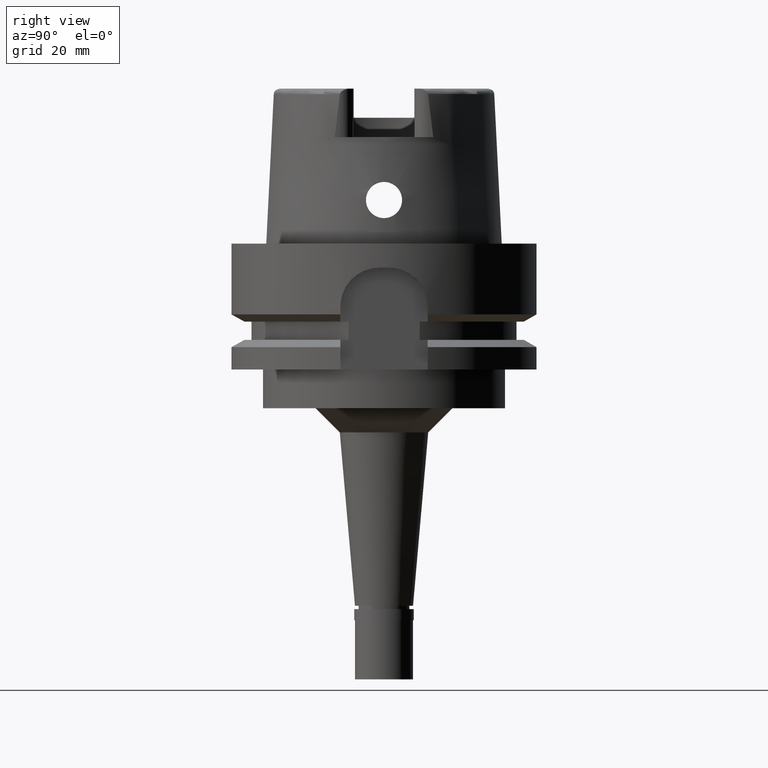
[diagram: clean part render]
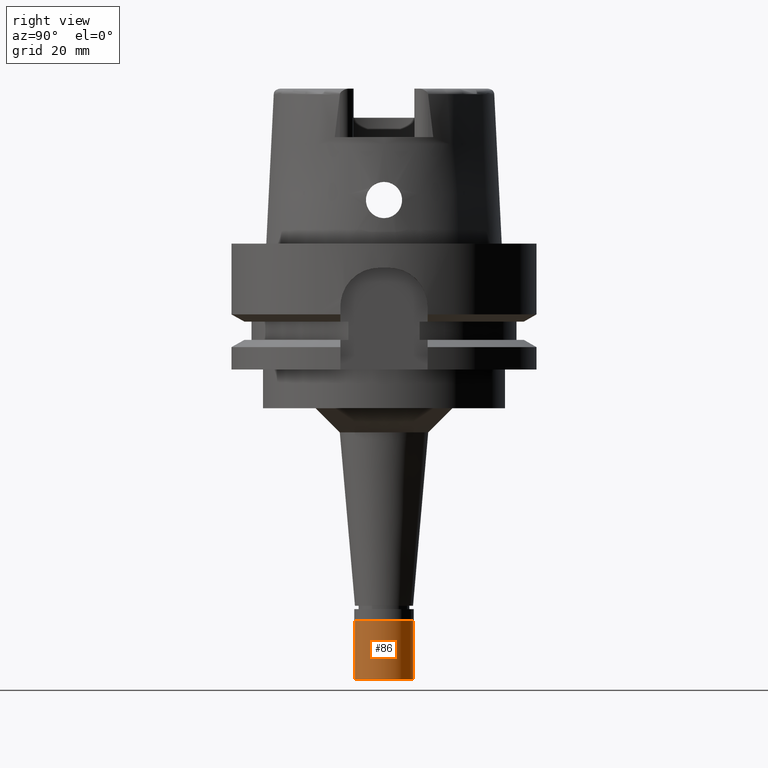
[diagram: same view with one face highlighted and labeled with its STEP entity id]
A machine part, right view. The second image highlights one B-rep face of the part: STEP entity #86.
In plain terms, the highlighted cylindrical surface (edge-blend (fillet) strip) has radius 6 mm, axis along (0, 0, 1).
Its self-contained STEP definition (entity closure, byte-faithful):
#13 = VERTEX_POINT ( 'NONE', #4155 ) ;
#20 = EDGE_CURVE ( 'NONE', #3428, #2763, #724, .T. ) ;
#86 = ADVANCED_FACE ( 'NONE', ( #1552 ), #1149, .T. ) ;
#455 = ORIENTED_EDGE ( 'NONE', *, *, #2513, .F. ) ;
#507 = VECTOR ( 'NONE', #3989, 1000.000000000000000 ) ;
#640 = DIRECTION ( 'NONE',  ( 0.0000000000000000000, 0.0000000000000000000, -1.000000000000000000 ) ) ;
#657 = CARTESIAN_POINT ( 'NONE',  ( 0.0000000000000000000, 0.0000000000000000000, -2.299999999999999822 ) ) ;
#690 = CIRCLE ( 'NONE', #3887, 6.000000000000000000 ) ;
#699 = DIRECTION ( 'NONE',  ( 0.0000000000000000000, 0.0000000000000000000, 1.000000000000000000 ) ) ;
#724 = LINE ( 'NONE', #3268, #1877 ) ;
#972 = DIRECTION ( 'NONE',  ( 0.0000000000000000000, 0.0000000000000000000, 1.000000000000000000 ) ) ;
#1017 = CARTESIAN_POINT ( 'NONE',  ( 0.0000000000000000000, 6.000000000000000000, -2.299999999999999822 ) ) ;
#1149 = CYLINDRICAL_SURFACE ( 'NONE', #4436, 6.000000000000000000 ) ;
#1552 = FACE_OUTER_BOUND ( 'NONE', #3675, .T. ) ;
#1646 = CARTESIAN_POINT ( 'NONE',  ( 0.0000000000000000000, -6.000000000000000000, -2.299999999999999822 ) ) ;
#1757 = ORIENTED_EDGE ( 'NONE', *, *, #4539, .T. ) ;
#1877 = VECTOR ( 'NONE', #640, 1000.000000000000000 ) ;
#1911 = VERTEX_POINT ( 'NONE', #4537 ) ;
#1944 = DIRECTION ( 'NONE',  ( 0.0000000000000000000, 0.0000000000000000000, -1.000000000000000000 ) ) ;
#1959 = CIRCLE ( 'NONE', #4515, 6.000000000000000000 ) ;
#2404 = DIRECTION ( 'NONE',  ( 0.0000000000000000000, 1.000000000000000000, 0.0000000000000000000 ) ) ;
#2513 = EDGE_CURVE ( 'NONE', #13, #1911, #4526, .T. ) ;
#2763 = VERTEX_POINT ( 'NONE', #4094 ) ;
#3162 = CARTESIAN_POINT ( 'NONE',  ( 0.0000000000000000000, 0.0000000000000000000, -14.50000000000000000 ) ) ;
#3164 = ORIENTED_EDGE ( 'NONE', *, *, #20, .T. ) ;
#3268 = CARTESIAN_POINT ( 'NONE',  ( 0.0000000000000000000, -6.000000000000000000, -2.299999999999999822 ) ) ;
#3428 = VERTEX_POINT ( 'NONE', #1646 ) ;
#3609 = ORIENTED_EDGE ( 'NONE', *, *, #4295, .T. ) ;
#3675 = EDGE_LOOP ( 'NONE', ( #3609, #3164, #1757, #455 ) ) ;
#3887 = AXIS2_PLACEMENT_3D ( 'NONE', #3162, #972, #4022 ) ;
#3989 = DIRECTION ( 'NONE',  ( 0.0000000000000000000, 0.0000000000000000000, -1.000000000000000000 ) ) ;
#4022 = DIRECTION ( 'NONE',  ( 0.0000000000000000000, -1.000000000000000000, 0.0000000000000000000 ) ) ;
#4094 = CARTESIAN_POINT ( 'NONE',  ( 0.0000000000000000000, -6.000000000000000000, -14.50000000000000000 ) ) ;
#4155 = CARTESIAN_POINT ( 'NONE',  ( 0.0000000000000000000, 6.000000000000000000, -2.299999999999999822 ) ) ;
#4295 = EDGE_CURVE ( 'NONE', #13, #3428, #1959, .T. ) ;
#4436 = AXIS2_PLACEMENT_3D ( 'NONE', #4611, #699, #5070 ) ;
#4515 = AXIS2_PLACEMENT_3D ( 'NONE', #657, #1944, #2404 ) ;
#4526 = LINE ( 'NONE', #1017, #507 ) ;
#4537 = CARTESIAN_POINT ( 'NONE',  ( 0.0000000000000000000, 6.000000000000000000, -14.50000000000000000 ) ) ;
#4539 = EDGE_CURVE ( 'NONE', #2763, #1911, #690, .T. ) ;
#4611 = CARTESIAN_POINT ( 'NONE',  ( 0.0000000000000000000, 0.0000000000000000000, -15.22500000000000142 ) ) ;
#5070 = DIRECTION ( 'NONE',  ( 0.0000000000000000000, 1.000000000000000000, 0.0000000000000000000 ) ) ;